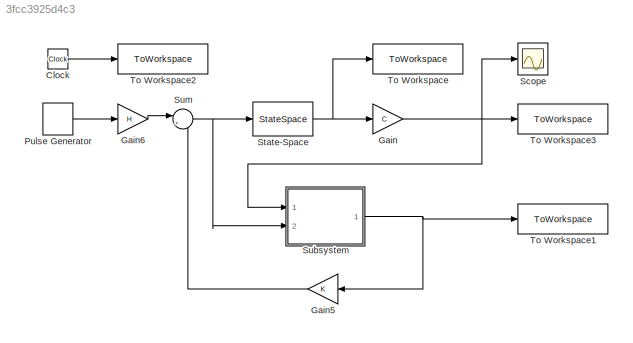
MODEL slx_3fcc3925d4c3
KIND model
CONFIG AbsTol = auto
CONFIG EnableMultiTasking = on
CONFIG FixedStep = 0.01
CONFIG MaxStep = auto
CONFIG MinStep = auto
CONFIG RelTol = 1e-3
CONFIG SampleTimeConstraint = Unconstrained
CONFIG Solver = ode4
CONFIG SolverName = ode4
CONFIG StartTime = 0.0
CONFIG StopTime = 15
BLOCK [Clock] Clock
BLOCK [Gain] Gain
  Gain = C
  Multiplication = Matrix(K*u)
BLOCK [Gain] Gain5
  Gain = K
  Multiplication = Matrix(K*u)
BLOCK [Gain] Gain6
  Gain = H
BLOCK [DiscretePulseGenerator] Pulse Generator
  Period = 10
  Ports = [0, 1]
  PulseType = Time based
  PulseWidth = 50
BLOCK [Scope] Scope
  Floating = off
  NumInputPorts = 1
  Ports = [1]
  ScopeSpecificationString = Simulink.scopes.TimeScopeBlockCfg('CurrentConfiguration', extmgr.ConfigurationSet(extmgr.Configuration('Core','General UI',true),extmgr.Configuration('Core','Source UI',true),extmgr.Configuration('Sources','WiredSimulink',true,'DataLoggingSaveFormat','StructureWithTime','DataLoggingDecimation','1','DataLoggingDecimateData',true),extmgr.Configuration('Visuals','Time Domain',true,'DisplayPropertyDef...<+838ch>
BLOCK [StateSpace] State-Space
  A = Av
  B = Bv
  C = eye(4)
  D = zeros(4,1)
  InitialCondition = x0
  Ports = [1, 1]
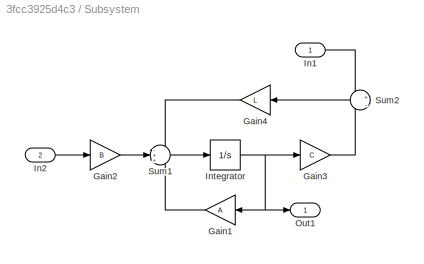
BLOCK [SubSystem] Subsystem
  Ports = [2, 1]
BLOCK [Gain] Subsystem/Gain1
  Gain = A
  Multiplication = Matrix(K*u)
  OutDataTypeStr = Inherit: Same as input
  ParamDataTypeStr = Inherit: Same as input
  SaturateOnIntegerOverflow = on
BLOCK [Gain] Subsystem/Gain2
  Gain = B
  Multiplication = Matrix(K*u)
  OutDataTypeStr = Inherit: Same as input
  ParamDataTypeStr = Inherit: Same as input
  SaturateOnIntegerOverflow = on
BLOCK [Gain] Subsystem/Gain3
  Gain = C
  Multiplication = Matrix(K*u)
  OutDataTypeStr = Inherit: Same as input
  ParamDataTypeStr = Inherit: Same as input
  SaturateOnIntegerOverflow = on
BLOCK [Gain] Subsystem/Gain4
  Gain = L
  Multiplication = Matrix(K*u)
  OutDataTypeStr = Inherit: Same as input
  ParamDataTypeStr = Inherit: Same as input
  SaturateOnIntegerOverflow = on
BLOCK [Inport] Subsystem/In1
BLOCK [Inport] Subsystem/In2
  Port = 2
BLOCK [Integrator] Subsystem/Integrator
  Ports = [1, 1]
BLOCK [Outport] Subsystem/Out1
  VectorParamsAs1DForOutWhenUnconnected = off
BLOCK [Sum] Subsystem/Sum1
  InputSameDT = on
  Inputs = -++
  OutDataTypeStr = Inherit: Same as first input
  Ports = [3, 1]
  SaturateOnIntegerOverflow = on
BLOCK [Sum] Subsystem/Sum2
  InputSameDT = on
  Inputs = +|-
  NameLocation = top
  OutDataTypeStr = Inherit: Same as first input
  Ports = [2, 1]
  SaturateOnIntegerOverflow = on
BLOCK [Sum] Sum
  InputSameDT = on
  Inputs = |++
  NameLocation = top
  OutDataTypeStr = Inherit: Same as first input
  Ports = [2, 1]
  SaturateOnIntegerOverflow = on
BLOCK [ToWorkspace] To Workspace
  FixptAsFi = on
  MaxDataPoints = inf
  Ports = [1]
  SampleTime = -1
  VariableName = x
BLOCK [ToWorkspace] To Workspace1
  FixptAsFi = on
  MaxDataPoints = inf
  Ports = [1]
  SampleTime = -1
  VariableName = x_hat
BLOCK [ToWorkspace] To Workspace2
  FixptAsFi = on
  MaxDataPoints = inf
  Ports = [1]
  SampleTime = -1
  VariableName = t
BLOCK [ToWorkspace] To Workspace3
  FixptAsFi = on
  MaxDataPoints = inf
  Ports = [1]
  SampleTime = -1
  VariableName = y
LINE Clock:1 -> To Workspace2:1
LINE Gain5:1 -> Sum:2
LINE Gain6:1 -> Sum:1
NET Gain:1 -> Scope:1, Subsystem:1, To Workspace3:1
LINE Pulse Generator:1 -> Gain6:1
NET State-Space:1 -> Gain:1, To Workspace:1
LINE Subsystem/Gain1:1 -> Subsystem/Sum1:3
LINE Subsystem/Gain2:1 -> Subsystem/Sum1:2
LINE Subsystem/Gain3:1 -> Subsystem/Sum2:2
LINE Subsystem/Gain4:1 -> Subsystem/Sum1:1
LINE Subsystem/In1:1 -> Subsystem/Sum2:1
LINE Subsystem/In2:1 -> Subsystem/Gain2:1
NET Subsystem/Integrator:1 -> Subsystem/Gain1:1, Subsystem/Gain3:1, Subsystem/Out1:1
LINE Subsystem/Sum1:1 -> Subsystem/Integrator:1
LINE Subsystem/Sum2:1 -> Subsystem/Gain4:1
NET Subsystem:1 -> Gain5:1, To Workspace1:1
NET Sum:1 -> State-Space:1, Subsystem:2
note: NET lines group one-source signal fan-out (src -> all destinations, sorted); 1:1 wires keep LINE
